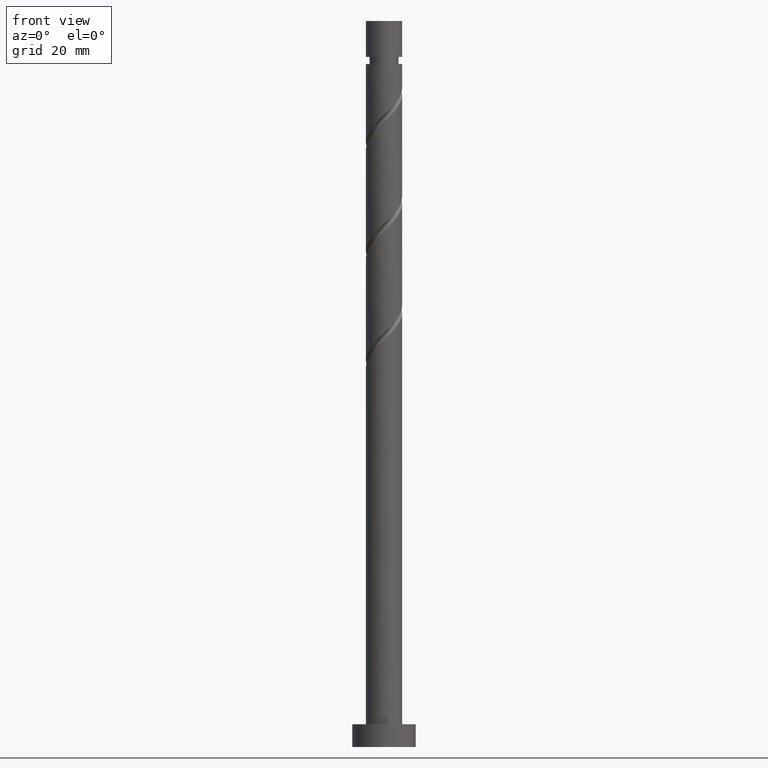
[diagram: clean part render]
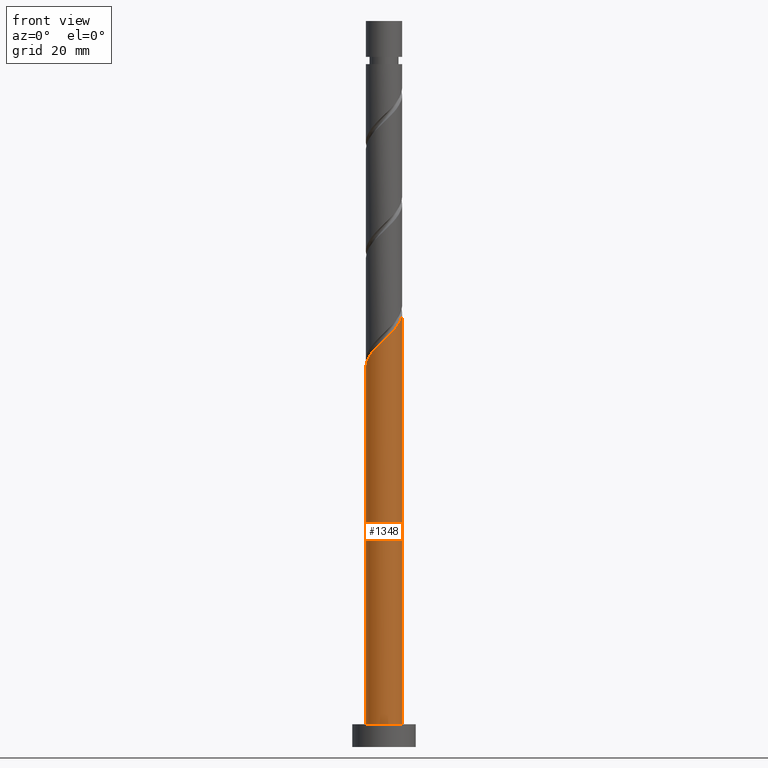
[diagram: same view with one face highlighted and labeled with its STEP entity id]
A machine part, front view. The second image highlights one B-rep face of the part: STEP entity #1348.
In plain terms, the highlighted cylindrical surface (edge-blend (fillet) strip) has radius 4 mm, axis along (-0, -0, -1).
Its self-contained STEP definition (entity closure, byte-faithful):
#10 = LINE ( 'NONE', #1185, #408 ) ;
#31 = CARTESIAN_POINT ( 'NONE',  ( -4.000000000000005329, -2.752055009443334096E-15, 83.72585481157213394 ) ) ;
#36 = CIRCLE ( 'NONE', #872, 4.000000000000000000 ) ;
#54 = CARTESIAN_POINT ( 'NONE',  ( -1.985696539029938146, -3.519625607940459311, 87.76309111567020693 ) ) ;
#65 = CARTESIAN_POINT ( 'NONE',  ( -2.441275768804712420, -3.168623142730450759, 87.21763657021567440 ) ) ;
#80 = CARTESIAN_POINT ( 'NONE',  ( 1.359600862145592615, -3.805553922997109595, 91.03581838839747320 ) ) ;
#91 = CARTESIAN_POINT ( 'NONE',  ( -3.766818871216639053, -1.345762085751509796, 85.03581838839748741 ) ) ;
#107 = ORIENTED_EDGE ( 'NONE', *, *, #1057, .T. ) ;
#185 = CARTESIAN_POINT ( 'NONE',  ( 4.000000000000000000, 4.898587196589412829E-16, 160.0000000000000000 ) ) ;
#189 = FACE_OUTER_BOUND ( 'NONE', #1540, .T. ) ;
#208 = CARTESIAN_POINT ( 'NONE',  ( 4.000000000000007994, -0.4581157095404881918, 95.28849085389796869 ) ) ;
#210 = ORIENTED_EDGE ( 'NONE', *, *, #1330, .F. ) ;
#216 = CARTESIAN_POINT ( 'NONE',  ( -3.993381233129885466, -0.2300137536889534373, 83.94490929748839392 ) ) ;
#328 = CARTESIAN_POINT ( 'NONE',  ( 0.2323790372250007230, -4.034446077002900921, 89.94490929748836550 ) ) ;
#339 = CARTESIAN_POINT ( 'NONE',  ( 2.788941361696814614, -2.867369191613936330, 92.67218202476112765 ) ) ;
#408 = VECTOR ( 'NONE', #1424, 1000.000000000000000 ) ;
#440 = CARTESIAN_POINT ( 'NONE',  ( 0.000000000000000000, 0.000000000000000000, 160.0000000000000000 ) ) ;
#460 = CARTESIAN_POINT ( 'NONE',  ( -0.3406448590276058841, -3.985468740313755642, 89.39945475203383296 ) ) ;
#469 = CARTESIAN_POINT ( 'NONE',  ( -1.449682647155075665, -3.728058505782533505, 88.30854566112475368 ) ) ;
#480 = CARTESIAN_POINT ( 'NONE',  ( 3.766394975944548751, -1.464590062224029987, 94.30854566112473947 ) ) ;
#596 = CARTESIAN_POINT ( 'NONE',  ( 3.896423597087605994, -0.9043689247530174447, 94.85400020657930042 ) ) ;
#607 = CARTESIAN_POINT ( 'NONE',  ( 0.7959899496852965717, -3.920000000000005702, 90.49036384294289803 ) ) ;
#619 = CARTESIAN_POINT ( 'NONE',  ( -4.000000000000000000, 0.000000000000000000, 5.000000000000000000 ) ) ;
#703 = AXIS2_PLACEMENT_3D ( 'NONE', #440, #1363, #740 ) ;
#706 = DIRECTION ( 'NONE',  ( -0.000000000000000000, -0.000000000000000000, -1.000000000000000000 ) ) ;
#716 = CARTESIAN_POINT ( 'NONE',  ( 4.000000000000005329, 2.557616340297881178E-15, 95.72585481157214815 ) ) ;
#740 = DIRECTION ( 'NONE',  ( -1.000000000000000000, 0.000000000000000000, 0.000000000000000000 ) ) ;
#751 =( BOUNDED_CURVE ( )  B_SPLINE_CURVE ( 2, ( #1380, #1370, #216, #1494, #91, #983, #1254, #1610, #65, #54, #469, #1236, #460, #328, #607, #80, #1621, #966, #339, #1129, #859, #480, #596, #208, #716 ),
 .UNSPECIFIED., .F., .T. ) 
 B_SPLINE_CURVE_WITH_KNOTS ( ( 3, 2, 2, 2, 2, 2, 2, 2, 2, 2, 2, 2, 3 ),
 ( 0.05452521624175134252, 0.05681818181818176772, 0.06818181818181823228, 0.07954545454545458583, 0.09090909090909093937, 0.1022727272727272929, 0.1136363636363636465, 0.1250000000000000000, 0.1363636363636363535, 0.1477272727272727071, 0.1590909090909090606, 0.1704545454545454142, 0.1795252162417513841 ),
 .UNSPECIFIED. ) 
 CURVE ( )  GEOMETRIC_REPRESENTATION_ITEM ( )  RATIONAL_B_SPLINE_CURVE ( ( 0.9061101570135623451, 0.9072237824201444534, 0.9090909090909219392, 0.8998376744372241776, 0.9090909090909219392, 0.8998376744372241776, 0.9090909090909219392, 0.8998376744372241776, 0.9090909090909219392, 0.8998376744372241776, 0.9090909090909219392, 0.8998376744372241776, 0.9090909090909219392, 0.8998376744372241776, 0.9090909090909219392, 0.8998376744372241776, 0.9090909090909219392, 0.8998376744372241776, 0.9090909090909219392, 0.8998376744372241776, 0.9090909090909219392, 0.8998376744372241776, 0.9090909090909219392, 0.9017048011080015524, 0.9061101570135623451 ) ) 
 REPRESENTATION_ITEM ( '' )  );
#776 = VERTEX_POINT ( 'NONE', #782 ) ;
#777 = EDGE_CURVE ( 'NONE', #975, #1421, #36, .T. ) ;
#782 = CARTESIAN_POINT ( 'NONE',  ( 4.000000000000005329, 2.557616340297881178E-15, 95.72585481157214815 ) ) ;
#783 = ORIENTED_EDGE ( 'NONE', *, *, #777, .T. ) ;
#810 = DIRECTION ( 'NONE',  ( 0.000000000000000000, 0.000000000000000000, 1.000000000000000000 ) ) ;
#852 = EDGE_CURVE ( 'NONE', #776, #1421, #969, .T. ) ;
#859 = CARTESIAN_POINT ( 'NONE',  ( 3.483800894132681236, -1.965485011400590842, 93.76309111567019272 ) ) ;
#872 = AXIS2_PLACEMENT_3D ( 'NONE', #1344, #810, #1231 ) ;
#966 = CARTESIAN_POINT ( 'NONE',  ( 2.376675911072817282, -3.268358422650720740, 92.12672747930655248 ) ) ;
#969 = LINE ( 'NONE', #185, #984 ) ;
#975 = VERTEX_POINT ( 'NONE', #619 ) ;
#983 = CARTESIAN_POINT ( 'NONE',  ( -3.573327494404169524, -1.887348876843109702, 85.58127293385199152 ) ) ;
#984 = VECTOR ( 'NONE', #706, 1000.000000000000000 ) ;
#1057 = EDGE_CURVE ( 'NONE', #1630, #975, #10, .T. ) ;
#1105 = CYLINDRICAL_SURFACE ( 'NONE', #703, 4.000000000000000000 ) ;
#1129 = CARTESIAN_POINT ( 'NONE',  ( 3.201206812320812833, -2.466379960577149699, 93.21763657021566019 ) ) ;
#1185 = CARTESIAN_POINT ( 'NONE',  ( -4.000000000000000000, 0.000000000000000000, 160.0000000000000000 ) ) ;
#1231 = DIRECTION ( 'NONE',  ( 1.000000000000000000, 0.000000000000000000, 0.000000000000000000 ) ) ;
#1236 = CARTESIAN_POINT ( 'NONE',  ( -0.9136687552802127410, -3.936491403624608143, 88.85400020657927200 ) ) ;
#1238 = ORIENTED_EDGE ( 'NONE', *, *, #852, .F. ) ;
#1254 = CARTESIAN_POINT ( 'NONE',  ( -3.235091246491827999, -2.352484777181776288, 86.12672747930656669 ) ) ;
#1330 = EDGE_CURVE ( 'NONE', #1630, #776, #751, .T. ) ;
#1344 = CARTESIAN_POINT ( 'NONE',  ( 0.000000000000000000, 0.000000000000000000, 5.000000000000000000 ) ) ;
#1348 = ADVANCED_FACE ( 'NONE', ( #189 ), #1105, .T. ) ;
#1363 = DIRECTION ( 'NONE',  ( -0.000000000000000000, -0.000000000000000000, -1.000000000000000000 ) ) ;
#1370 = CARTESIAN_POINT ( 'NONE',  ( -4.000000000000005329, -0.1151021060952918118, 83.83574301581855082 ) ) ;
#1380 = CARTESIAN_POINT ( 'NONE',  ( -4.000000000000005329, -2.752055009443334096E-15, 83.72585481157213394 ) ) ;
#1421 = VERTEX_POINT ( 'NONE', #1485 ) ;
#1424 = DIRECTION ( 'NONE',  ( -0.000000000000000000, -0.000000000000000000, -1.000000000000000000 ) ) ;
#1485 = CARTESIAN_POINT ( 'NONE',  ( 4.000000000000000000, 4.898587196589412829E-16, 5.000000000000000000 ) ) ;
#1494 = CARTESIAN_POINT ( 'NONE',  ( -3.960310248029106805, -0.8041752946599106666, 84.49036384294296909 ) ) ;
#1540 = EDGE_LOOP ( 'NONE', ( #1238, #210, #107, #783 ) ) ;
#1610 = CARTESIAN_POINT ( 'NONE',  ( -2.896854998579486917, -2.817620677520442651, 86.67218202476112765 ) ) ;
#1621 = CARTESIAN_POINT ( 'NONE',  ( 1.868138386609204726, -3.536956172823916056, 91.58127293385204837 ) ) ;
#1630 = VERTEX_POINT ( 'NONE', #31 ) ;